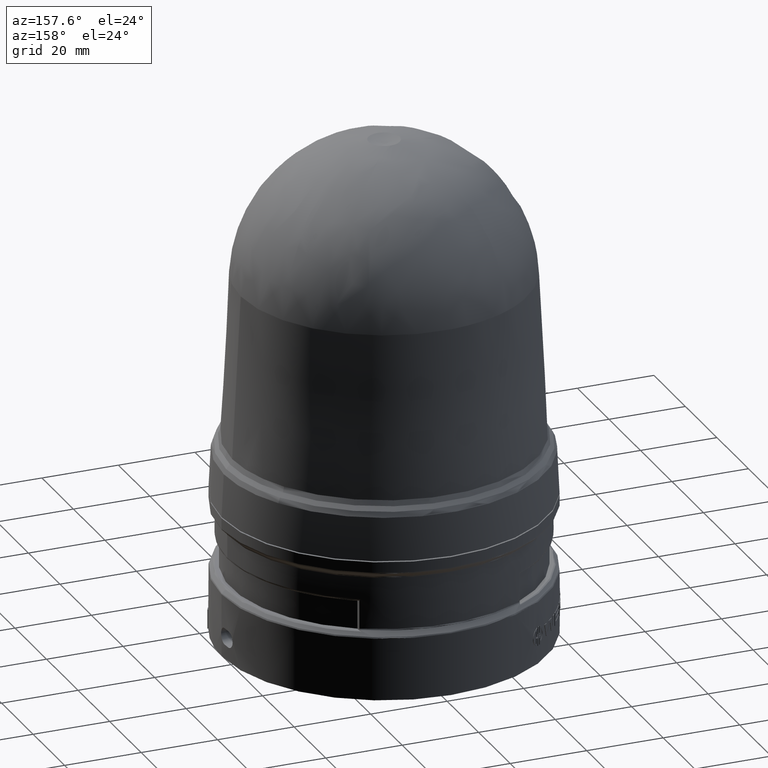
[diagram: clean part render]
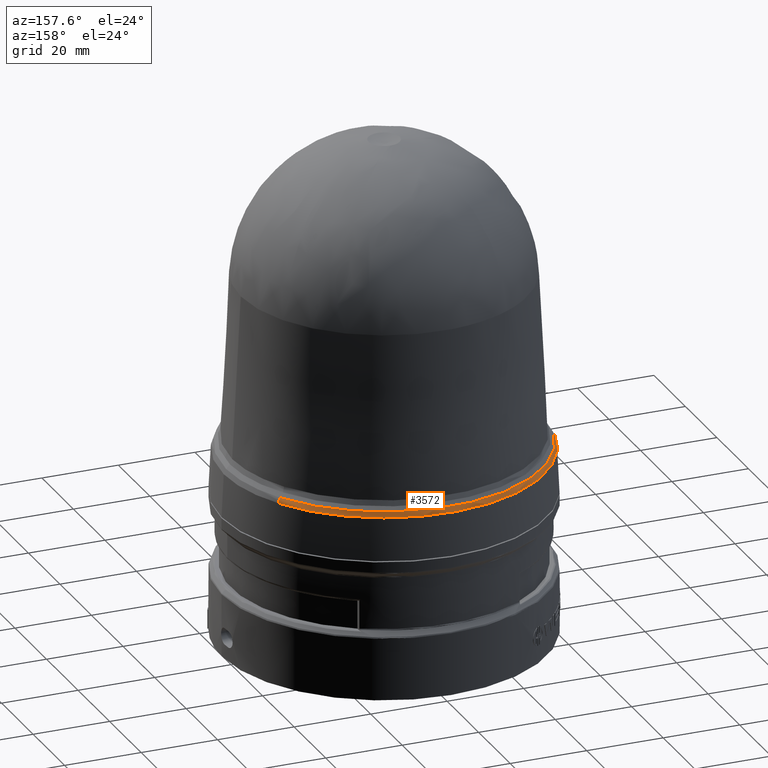
[diagram: same view with one face highlighted and labeled with its STEP entity id]
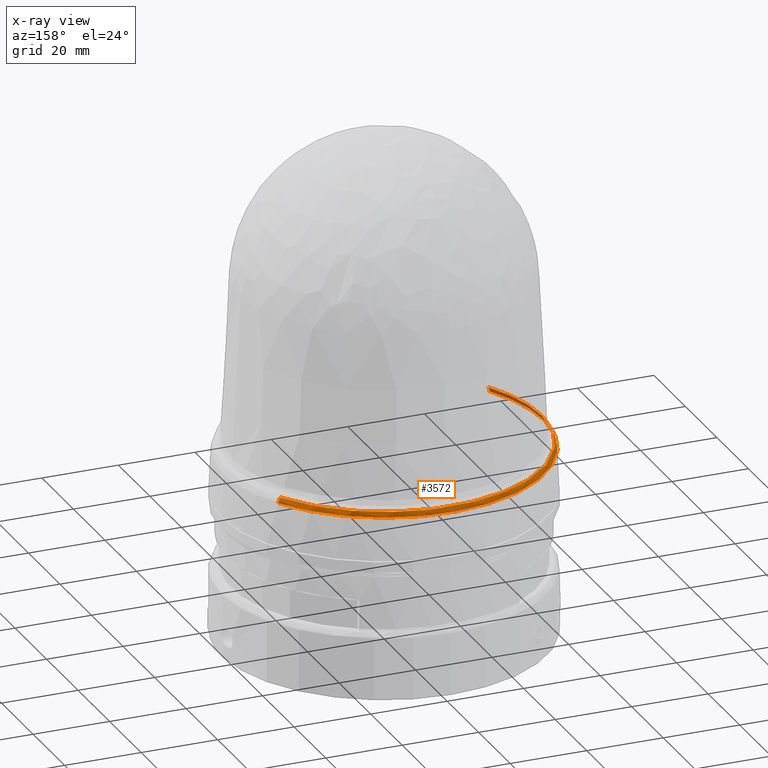
[diagram: x-ray of the same camera — body ghosted, the highlighted face saturated]
A machine part, auxiliary view. The second image highlights one B-rep face of the part: STEP entity #3572.
The next image is the same camera in x-ray: the body ghosted, the highlighted face saturated — about 9% of this face is hidden behind the body in this view.
In plain terms, the highlighted face is a freeform B-spline surface patch.
Its self-contained STEP definition (entity closure, byte-faithful):
#307 = EDGE_CURVE ( 'NONE', #9493, #2269, #1429, .T. ) ;
#352 = ORIENTED_EDGE ( 'NONE', *, *, #307, .T. ) ;
#473 = VERTEX_POINT ( 'NONE', #12119 ) ;
#555 = CARTESIAN_POINT ( 'NONE',  ( -1.407777115246838129, -0.8158463767105484932, 1.942632508836785732 ) ) ;
#661 = CARTESIAN_POINT ( 'NONE',  ( -0.2269328009786351352, 3.680332101802739064, 1.910732323102366070 ) ) ;
#1429 = CIRCLE ( 'NONE', #4166, 1.650050646900994122 ) ;
#1632 = DIRECTION ( 'NONE',  ( -0.0000000000000000000, -0.0000000000000000000, 1.000000000000000000 ) ) ;
#1697 = CARTESIAN_POINT ( 'NONE',  ( -1.427637581207633843, -0.8273560745301903330, 1.891075750967208702 ) ) ;
#1856 = ORIENTED_EDGE ( 'NONE', *, *, #12563, .F. ) ;
#1859 = CARTESIAN_POINT ( 'NONE',  ( 0.0000000000000000000, 0.0000000000000000000, 1.891075750967208702 ) ) ;
#1937 = DIRECTION ( 'NONE',  ( -0.8652083400524217538, -0.5014125330541039371, 0.0000000000000000000 ) ) ;
#2269 = VERTEX_POINT ( 'NONE', #5749 ) ;
#2644 = CARTESIAN_POINT ( 'NONE',  ( -0.2239156381742589685, 3.631400607204224418, 1.942632508836787286 ) ) ;
#3073 = CARTESIAN_POINT ( 'NONE',  ( -3.065469848963093824, 2.016813588349010811, 1.928714138742648077 ) ) ;
#3104 = CARTESIAN_POINT ( 'NONE',  ( 1.407777115246837907, 0.8158463767105484932, 1.942632508836785732 ) ) ;
#3519 = CIRCLE ( 'NONE', #7775, 0.07874015748031504280 ) ;
#3572 = ADVANCED_FACE ( 'NONE', ( #5873 ), #9968, .T. ) ;
#3758 = AXIS2_PLACEMENT_3D ( 'NONE', #8530, #6181, #3824 ) ;
#3824 = DIRECTION ( 'NONE',  ( -0.8652083400524219758, -0.5014125330541034931, 0.0000000000000000000 ) ) ;
#4166 = AXIS2_PLACEMENT_3D ( 'NONE', #1859, #12663, #1937 ) ;
#4331 = CARTESIAN_POINT ( 'NONE',  ( 1.407777115246838129, 0.8158463767105487152, 1.942632508836787064 ) ) ;
#4449 = AXIS2_PLACEMENT_3D ( 'NONE', #7943, #5839, #4579 ) ;
#4579 = DIRECTION ( 'NONE',  ( 0.5014125330541039371, -0.8652083400524217538, 0.0000000000000000000 ) ) ;
#4645 = VERTEX_POINT ( 'NONE', #1697 ) ;
#5085 = DIRECTION ( 'NONE',  ( 0.5014125330541041592, -0.8652083400524218648, 0.0000000000000000000 ) ) ;
#5480 = CARTESIAN_POINT ( 'NONE',  ( 0.0000000000000000000, 0.0000000000000000000, 1.942632508836785732 ) ) ;
#5503 = CIRCLE ( 'NONE', #3758, 0.07874015748031504280 ) ;
#5694 = ORIENTED_EDGE ( 'NONE', *, *, #9605, .F. ) ;
#5749 = CARTESIAN_POINT ( 'NONE',  ( -1.650050646900993900, 0.0000000000000000000, 1.891075750967208702 ) ) ;
#5839 = DIRECTION ( 'NONE',  ( -0.0000000000000000000, -0.0000000000000000000, 1.000000000000000000 ) ) ;
#5873 = FACE_OUTER_BOUND ( 'NONE', #8325, .T. ) ;
#6181 = DIRECTION ( 'NONE',  ( -0.5014125330541039371, 0.8652083400524217538, 0.0000000000000000000 ) ) ;
#6254 = CARTESIAN_POINT ( 'NONE',  ( 1.426746280525369004, 0.8268395407520020557, 1.910732323102366070 ) ) ;
#7129 = CARTESIAN_POINT ( 'NONE',  ( -3.080425362029372227, 2.026653020298735175, 1.910732323102366070 ) ) ;
#7141 = CARTESIAN_POINT ( 'NONE',  ( 1.427637581207633843, 0.8273560745301905550, 1.891075750967208702 ) ) ;
#7225 = AXIS2_PLACEMENT_3D ( 'NONE', #5480, #8071, #15174 ) ;
#7624 = ORIENTED_EDGE ( 'NONE', *, *, #14784, .F. ) ;
#7708 = CARTESIAN_POINT ( 'NONE',  ( -1.419819405132223489, -0.8228252219154353897, 1.928714138742647854 ) ) ;
#7775 = AXIS2_PLACEMENT_3D ( 'NONE', #12286, #5085, #11189 ) ;
#7943 = CARTESIAN_POINT ( 'NONE',  ( 0.0000000000000000000, 0.0000000000000000000, 1.942632508836785732 ) ) ;
#8071 = DIRECTION ( 'NONE',  ( -0.0000000000000000000, -0.0000000000000000000, 1.000000000000000000 ) ) ;
#8222 = CARTESIAN_POINT ( 'NONE',  ( -1.427637581207633843, -0.8273560745301904440, 1.891075750967208702 ) ) ;
#8325 = EDGE_LOOP ( 'NONE', ( #5694, #352, #8973, #12252, #1856, #7624 ) ) ;
#8530 = CARTESIAN_POINT ( 'NONE',  ( -1.359604305452332351, -0.7879288804668884705, 1.886954809530760002 ) ) ;
#8973 = ORIENTED_EDGE ( 'NONE', *, *, #11520, .T. ) ;
#9493 = VERTEX_POINT ( 'NONE', #7141 ) ;
#9605 = EDGE_CURVE ( 'NONE', #9493, #13962, #3519, .T. ) ;
#9968 =( BOUNDED_SURFACE ( )  B_SPLINE_SURFACE ( 3, 3, ( 
 ( #8222, #12996, #10648, #15395 ),
 ( #14229, #7129, #661, #6254 ),
 ( #7708, #3073, #13796, #15041 ),
 ( #12199, #12710, #2644, #4331 ) ),
 .UNSPECIFIED., .F., .F., .T. ) 
 B_SPLINE_SURFACE_WITH_KNOTS ( ( 4, 4 ),
 ( 4, 4 ),
 ( 0.0000000000000000000, 1.000000000000000000 ),
 ( 0.0000000000000000000, 1.000000000000000000 ),
 .UNSPECIFIED. ) 
 GEOMETRIC_REPRESENTATION_ITEM ( )  RATIONAL_B_SPLINE_SURFACE ( (
 ( 1.000000000000000000, 0.3333333333333334259, 0.3333333333333334259, 1.000000000000000000),
 ( 0.9557202843314624996, 0.3185734281104876109, 0.3185734281104876109, 0.9557202843314624996),
 ( 0.9557202843314624996, 0.3185734281104876109, 0.3185734281104876109, 0.9557202843314624996),
 ( 1.000000000000000000, 0.3333333333333334259, 0.3333333333333334259, 1.000000000000000000) ) ) 
 REPRESENTATION_ITEM ( '' )  SURFACE ( )  );
#10007 = CARTESIAN_POINT ( 'NONE',  ( 0.0000000000000000000, 0.0000000000000000000, 1.891075750967208702 ) ) ;
#10648 = CARTESIAN_POINT ( 'NONE',  ( -0.2270745678527469613, 3.682631236945457243, 1.891075750967208702 ) ) ;
#11189 = DIRECTION ( 'NONE',  ( 0.8652083400524219758, 0.5014125330541034931, 0.0000000000000000000 ) ) ;
#11514 = EDGE_CURVE ( 'NONE', #4645, #12483, #5503, .T. ) ;
#11520 = EDGE_CURVE ( 'NONE', #2269, #4645, #14986, .T. ) ;
#11963 = CIRCLE ( 'NONE', #7225, 1.627096099375950899 ) ;
#12119 = CARTESIAN_POINT ( 'NONE',  ( -1.627096099375951122, 0.0000000000000000000, 1.942632508836785732 ) ) ;
#12199 = CARTESIAN_POINT ( 'NONE',  ( -1.407777115246838129, -0.8158463767105484932, 1.942632508836787064 ) ) ;
#12252 = ORIENTED_EDGE ( 'NONE', *, *, #11514, .T. ) ;
#12286 = CARTESIAN_POINT ( 'NONE',  ( 1.359604305452332351, 0.7879288804668885815, 1.886954809530760002 ) ) ;
#12483 = VERTEX_POINT ( 'NONE', #555 ) ;
#12563 = EDGE_CURVE ( 'NONE', #473, #12483, #11963, .T. ) ;
#12663 = DIRECTION ( 'NONE',  ( -0.0000000000000000000, -0.0000000000000000000, 1.000000000000000000 ) ) ;
#12688 = CIRCLE ( 'NONE', #4449, 1.627096099375950899 ) ;
#12710 = CARTESIAN_POINT ( 'NONE',  ( -3.039469868667934893, 1.999707853783127209, 1.942632508836787286 ) ) ;
#12996 = CARTESIAN_POINT ( 'NONE',  ( -3.082349730268014287, 2.027919087885076799, 1.891075750967208702 ) ) ;
#13444 = DIRECTION ( 'NONE',  ( -0.8652083400524244183, -0.5014125330540992742, 0.0000000000000000000 ) ) ;
#13796 = CARTESIAN_POINT ( 'NONE',  ( -0.2258310386986474017, 3.662464032179881812, 1.928714138742648077 ) ) ;
#13962 = VERTEX_POINT ( 'NONE', #3104 ) ;
#14229 = CARTESIAN_POINT ( 'NONE',  ( -1.426746280525369004, -0.8268395407520019447, 1.910732323102366070 ) ) ;
#14244 = AXIS2_PLACEMENT_3D ( 'NONE', #10007, #1632, #13444 ) ;
#14784 = EDGE_CURVE ( 'NONE', #13962, #473, #12688, .T. ) ;
#14986 = CIRCLE ( 'NONE', #14244, 1.650050646900994122 ) ;
#15041 = CARTESIAN_POINT ( 'NONE',  ( 1.419819405132223489, 0.8228252219154356117, 1.928714138742647854 ) ) ;
#15174 = DIRECTION ( 'NONE',  ( 0.5014125330541008285, -0.8652083400524235302, 0.0000000000000000000 ) ) ;
#15395 = CARTESIAN_POINT ( 'NONE',  ( 1.427637581207633843, 0.8273560745301905550, 1.891075750967208702 ) ) ;